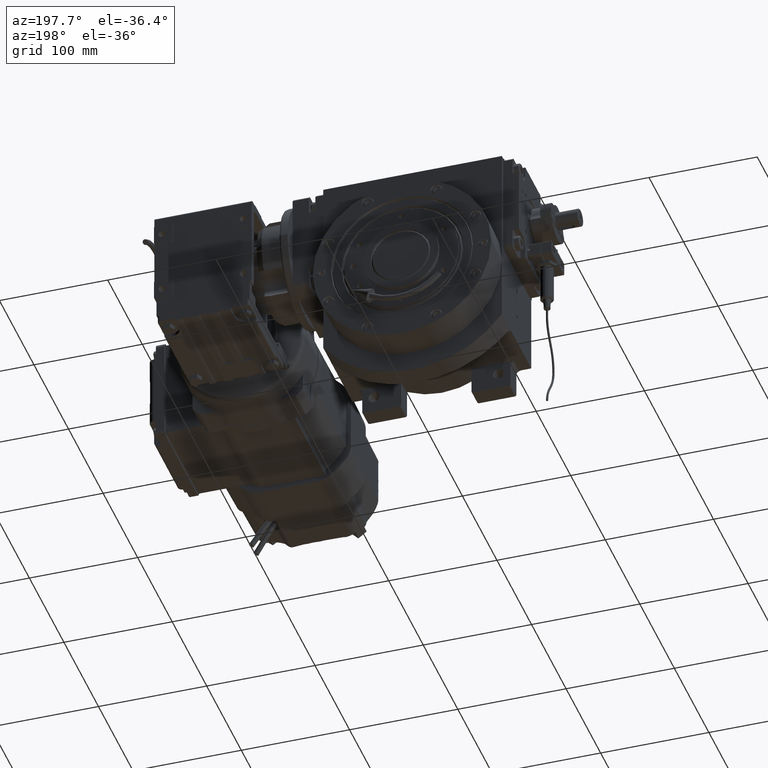
[diagram: clean part render]
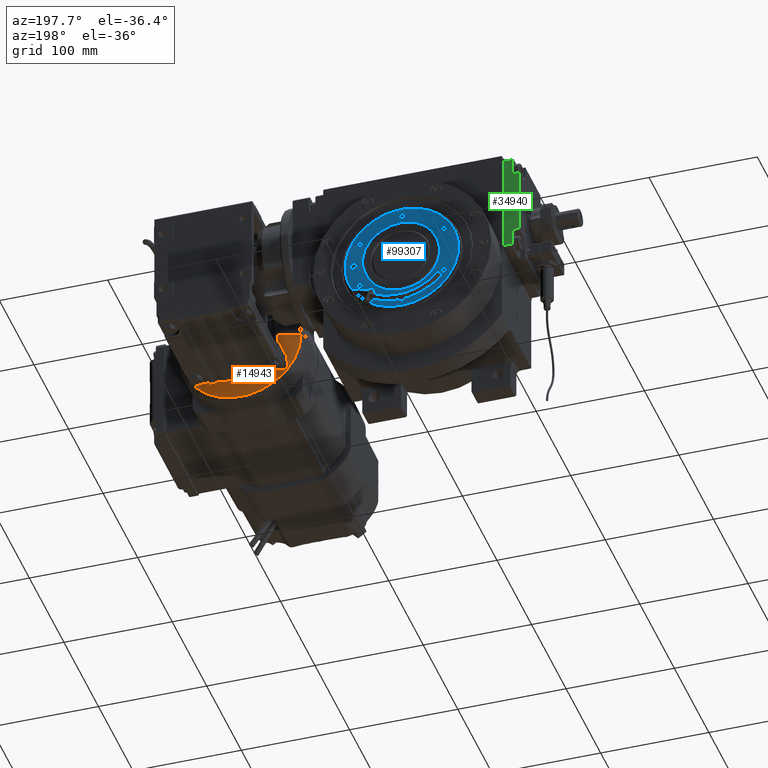
[diagram: same view with three faces highlighted in distinct colors, each labeled with its STEP entity id]
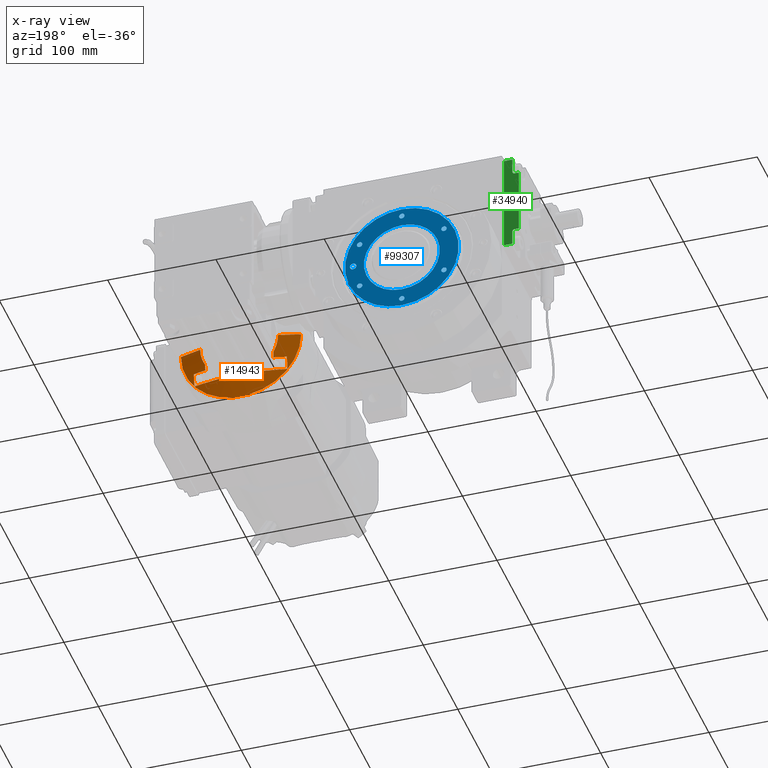
[diagram: x-ray of the same camera — body ghosted, the three highlighted faces saturated]
A machine part, auxiliary view with three faces highlighted in distinct colors.
The next image is the same camera in x-ray (body ghosted, the three faces saturated) — at least one of them is partly hidden behind the body in this view.
Their STEP definitions:

[orange] entity #14943 — the highlighted conical surface has half-angle 75 deg.
#424 = VERTEX_POINT ( 'NONE', #34430 ) ;
#835 = EDGE_CURVE ( 'NONE', #3101, #44496, #103355, .T. ) ;
#1517 = CARTESIAN_POINT ( 'NONE',  ( 60.70560464675960333, -55.53527618041010072, 23.00000000000000000 ) ) ;
#1633 = CARTESIAN_POINT ( 'NONE',  ( 55.59479854732852289, 10.25580491706939412, 57.99999784483905074 ) ) ;
#1983 = CARTESIAN_POINT ( 'NONE',  ( 59.37756693539540720, -43.00000000000005684, 49.84654288193761573 ) ) ;
#2159 = CARTESIAN_POINT ( 'NONE',  ( 55.21180228851321914, 1.518749620814553003, 57.99990757779804085 ) ) ;
#2208 = VERTEX_POINT ( 'NONE', #21032 ) ;
#2687 = CARTESIAN_POINT ( 'NONE',  ( 55.98866483824421181, 14.64589526414627407, 57.99931717376770735 ) ) ;
#3101 = VERTEX_POINT ( 'NONE', #86324 ) ;
#3135 = DIRECTION ( 'NONE',  ( 0.2588190451025170757, 0.9659258262890693114, -1.724081178505877120E-15 ) ) ;
#3213 = CARTESIAN_POINT ( 'NONE',  ( 55.52988276042200511, 9.359258455292662759, 57.99986076666460377 ) ) ;
#3298 = AXIS2_PLACEMENT_3D ( 'NONE', #43852, #92750, #91691 ) ;
#3478 = CARTESIAN_POINT ( 'NONE',  ( 57.35738505434664347, 36.37904139301277695, 45.99997976349786200 ) ) ;
#3678 = VECTOR ( 'NONE', #29288, 1000.000000000000114 ) ;
#3747 = CARTESIAN_POINT ( 'NONE',  ( 55.20447591439025103, 0.6213889841533943859, 58.00000055056467829 ) ) ;
#4014 = CARTESIAN_POINT ( 'NONE',  ( 56.67828474735084399, 33.34585159453098413, 46.00008137552858045 ) ) ;
#4126 = CARTESIAN_POINT ( 'NONE',  ( 57.74007323574029016, -38.05795624791647214, 45.99997492173984881 ) ) ;
#4266 = CARTESIAN_POINT ( 'NONE',  ( 58.55369725509652312, -32.11937751389896789, 58.00000068989255908 ) ) ;
#4531 = CARTESIAN_POINT ( 'NONE',  ( 56.47298224054166838, 32.41095305449594832, 46.00000000000004263 ) ) ;
#4785 = CARTESIAN_POINT ( 'NONE',  ( 55.55480695641094258, -9.678102850824329195, 57.99996520828103996 ) ) ;
#6275 = CIRCLE ( 'NONE', #65616, 55.53527618041010783 ) ;
#6345 = EDGE_CURVE ( 'NONE', #76436, #23620, #36203, .T. ) ;
#6645 = B_SPLINE_CURVE_WITH_KNOTS ( 'NONE', 3,
 ( #101234, #100711, #75720, #60326 ),
 .UNSPECIFIED., .F., .F.,
 ( 4, 4 ),
 ( 0.000000000000000000, 1.000000000000000000 ),
 .UNSPECIFIED. ) ;
#6767 = EDGE_CURVE ( 'NONE', #72037, #16247, #6275, .T. ) ;
#9636 = CARTESIAN_POINT ( 'NONE',  ( 56.93048809421203060, 22.19940043356490733, 58.00000579225199715 ) ) ;
#9778 = CARTESIAN_POINT ( 'NONE',  ( 60.68105753241992772, 42.99999999999998579, 58.00000000000083844 ) ) ;
#10154 = CARTESIAN_POINT ( 'NONE',  ( 55.22902768285334929, 2.640414489346750049, 57.99980308284672503 ) ) ;
#10685 = CARTESIAN_POINT ( 'NONE',  ( 58.64437501260088226, 32.61782815325872065, 58.00000229697241849 ) ) ;
#11210 = CARTESIAN_POINT ( 'NONE',  ( 55.38376555833004034, 6.904551271289927961, 58.00003099413505936 ) ) ;
#11587 = CARTESIAN_POINT ( 'NONE',  ( 57.98129327312985026, -39.10642082772725558, 46.00002199801362934 ) ) ;
#11733 = CARTESIAN_POINT ( 'NONE',  ( 60.29296078766867595, 41.13245522249020070, 58.00000000000000711 ) ) ;
#12001 = CARTESIAN_POINT ( 'NONE',  ( 57.45658739437995166, 36.81600595407524423, 45.99996258104147273 ) ) ;
#12114 = CARTESIAN_POINT ( 'NONE',  ( 56.27584952382022720, -31.50000000000000000, 46.00000000000027711 ) ) ;
#12257 = CARTESIAN_POINT ( 'NONE',  ( 58.42288389032510310, -31.39363734365098324, 58.00002967288055800 ) ) ;
#12300 = EDGE_CURVE ( 'NONE', #24991, #16247, #21349, .T. ) ;
#12523 = CARTESIAN_POINT ( 'NONE',  ( 57.55343899636205407, 37.24141494497584404, 45.99995606147111715 ) ) ;
#12635 = CARTESIAN_POINT ( 'NONE',  ( 58.89144530955721990, -42.99999999999998579, 46.00000000000027711 ) ) ;
#12779 = CARTESIAN_POINT ( 'NONE',  ( 55.91953545001264558, -14.03858445855587611, 57.99896360002735918 ) ) ;
#12929 = CARTESIAN_POINT ( 'NONE',  ( 59.37756693539530062, 42.99999999999958078, 49.84654288193758731 ) ) ;
#13362 = CARTESIAN_POINT ( 'NONE',  ( 60.70560464675960333, -55.53527618041010072, 23.00000000000000000 ) ) ;
#13680 = CARTESIAN_POINT ( 'NONE',  ( 58.09066315244004386, -39.57920898115285269, 46.00003962654415801 ) ) ;
#14465 = ORIENTED_EDGE ( 'NONE', *, *, #35430, .T. ) ;
#14943 = ADVANCED_FACE ( 'NONE', ( #17488 ), #102261, .T. ) ;
#16247 = VERTEX_POINT ( 'NONE', #1517 ) ;
#17488 = FACE_OUTER_BOUND ( 'NONE', #55420, .T. ) ;
#17620 = CARTESIAN_POINT ( 'NONE',  ( 57.38667572775629822, 25.24489131606639347, 58.00027114944251849 ) ) ;
#17784 = CARTESIAN_POINT ( 'NONE',  ( 55.70629206098000452, 31.49999999999940314, 42.24116222494700423 ) ) ;
#18141 = CARTESIAN_POINT ( 'NONE',  ( 57.12445891805860754, 23.52552018468882977, 58.00009546070077704 ) ) ;
#18400 = CARTESIAN_POINT ( 'NONE',  ( 58.89144530955721990, -42.99999999999998579, 46.00000000000027711 ) ) ;
#19189 = CARTESIAN_POINT ( 'NONE',  ( 55.73182955616174894, 11.91945088786192741, 57.99994078120256091 ) ) ;
#19723 = CARTESIAN_POINT ( 'NONE',  ( 59.24190080513361067, 35.81354223526840030, 58.00037415571010513 ) ) ;
#20769 = CARTESIAN_POINT ( 'NONE',  ( 57.91463368884339502, -28.48200423023081385, 58.00032636197047253 ) ) ;
#20820 = ORIENTED_EDGE ( 'NONE', *, *, #6345, .T. ) ;
#20904 = AXIS2_PLACEMENT_3D ( 'NONE', #49854, #63712, #31317 ) ;
#21032 = CARTESIAN_POINT ( 'NONE',  ( 56.27584952382022720, -31.50000000000000000, 46.00000000000027711 ) ) ;
#21283 = CARTESIAN_POINT ( 'NONE',  ( 55.20572867746128054, 0.8449296871884365290, 57.99998263170753887 ) ) ;
#21349 = LINE ( 'NONE', #13362, #3678 ) ;
#21801 = CARTESIAN_POINT ( 'NONE',  ( 56.21989587330659788, -16.75561040452729600, 57.99906160567301328 ) ) ;
#22200 = VERTEX_POINT ( 'NONE', #9778 ) ;
#23620 = VERTEX_POINT ( 'NONE', #102594 ) ;
#24140 = CARTESIAN_POINT ( 'NONE',  ( 55.67295191428865309, 11.21595701880527507, 58.00000013469762905 ) ) ;
#24834 = ORIENTED_EDGE ( 'NONE', *, *, #87441, .T. ) ;
#24991 = VERTEX_POINT ( 'NONE', #96738 ) ;
#26087 = CARTESIAN_POINT ( 'NONE',  ( 55.29112144808813412, 4.885380752023768203, 58.00012066464812932 ) ) ;
#27136 = CARTESIAN_POINT ( 'NONE',  ( 58.88010481217450831, 33.89730466681972842, 58.00010624261025782 ) ) ;
#27408 = CARTESIAN_POINT ( 'NONE',  ( 57.54950367862325322, 37.22415203964281716, 45.99995608569102501 ) ) ;
#27671 = CARTESIAN_POINT ( 'NONE',  ( 56.61605878314411200, 19.98400768915852765, 57.99999593877495130 ) ) ;
#28180 = CARTESIAN_POINT ( 'NONE',  ( 56.81182815739391145, -21.36088806064554291, 58.00000000221390195 ) ) ;
#28479 = ORIENTED_EDGE ( 'NONE', *, *, #6767, .F. ) ;
#28695 = CARTESIAN_POINT ( 'NONE',  ( 55.28226502629055972, -4.575413440328083503, 58.00014992311091078 ) ) ;
#29227 = CARTESIAN_POINT ( 'NONE',  ( 59.88831231623908025, -39.18526254498164718, 57.99999999999993605 ) ) ;
#29288 = DIRECTION ( 'NONE',  ( 0.2588190451025170757, -0.9659258262890693114, -1.605789381368008583E-15 ) ) ;
#29658 = ORIENTED_EDGE ( 'NONE', *, *, #34014, .T. ) ;
#29753 = CARTESIAN_POINT ( 'NONE',  ( 55.24190846571092806, -3.216132428180518144, 57.99990780651111777 ) ) ;
#31317 = DIRECTION ( 'NONE',  ( 0.000000000000000000, 1.000000000000000000, 0.000000000000000000 ) ) ;
#32078 = CARTESIAN_POINT ( 'NONE',  ( 60.68105753241992772, 42.99999999999998579, 58.00000000000083844 ) ) ;
#33297 = ORIENTED_EDGE ( 'NONE', *, *, #82261, .T. ) ;
#33886 = ORIENTED_EDGE ( 'NONE', *, *, #36126, .T. ) ;
#34014 = EDGE_CURVE ( 'NONE', #23620, #22200, #102077, .T. ) ;
#34041 = CARTESIAN_POINT ( 'NONE',  ( 55.81909124310548975, 12.89842630269497903, 57.99973291084609883 ) ) ;
#34430 = CARTESIAN_POINT ( 'NONE',  ( 60.68105753241992772, -42.99999999999998579, 58.00000000000083844 ) ) ;
#34579 = CARTESIAN_POINT ( 'NONE',  ( 55.20939382126598360, 1.294256962774257946, 57.99993614853741519 ) ) ;
#34639 = DIRECTION ( 'NONE',  ( 1.000000000000000000, 2.142138711528200832E-47, -6.661338147750980263E-15 ) ) ;
#35102 = CARTESIAN_POINT ( 'NONE',  ( 55.36671241091783457, 6.570347031544362615, 58.00007352765489799 ) ) ;
#35252 = CARTESIAN_POINT ( 'NONE',  ( 58.89144530955711332, 42.99999999999940314, 46.00000000000027711 ) ) ;
#35430 = EDGE_CURVE ( 'NONE', #48382, #2208, #47280, .T. ) ;
#35629 = CARTESIAN_POINT ( 'NONE',  ( 59.92643170991120627, 39.31978427658594910, 58.00047335426332040 ) ) ;
#35639 = CARTESIAN_POINT ( 'NONE',  ( 60.70560464675960333, 0.000000000000000000, 23.00000000000000000 ) ) ;
#36126 = EDGE_CURVE ( 'NONE', #22200, #424, #42193, .T. ) ;
#36145 = CARTESIAN_POINT ( 'NONE',  ( 56.70224380031915246, -20.56674021243053829, 57.99994885884542128 ) ) ;
#36203 = B_SPLINE_CURVE_WITH_KNOTS ( 'NONE', 3,
 ( #84786, #4531, #4014, #44399, #60867, #93287, #3478, #12001, #52876, #85313, #68302, #27408, #12523, #69337, #92247, #44926 ),
 .UNSPECIFIED., .F., .F.,
 ( 4, 2, 2, 1, 1, 1, 1, 2, 2, 4 ),
 ( 0.000000000000000000, 0.2500000000000114353, 0.3750000000000171529, 0.4375000000000202616, 0.4687500000000209277, 0.4843750000000204836, 0.4921875000000196509, 0.4960937500000192069, 0.5000000000000187628, 1.000000000000000000 ),
 .UNSPECIFIED. ) ;
#36653 = CARTESIAN_POINT ( 'NONE',  ( 56.65500433359252952, -20.21588629307815665, 57.99988959529130739 ) ) ;
#37034 = CARTESIAN_POINT ( 'NONE',  ( 57.56976527915672648, -37.31300970907284409, 45.99995636308280922 ) ) ;
#37174 = CARTESIAN_POINT ( 'NONE',  ( 58.57017062647901184, -32.21022454179474437, 58.00000002524666343 ) ) ;
#37715 = CARTESIAN_POINT ( 'NONE',  ( 56.50201378934142582, -19.05246140927851428, 57.99962716294535880 ) ) ;
#37723 = DIRECTION ( 'NONE',  ( 0.000000000000000000, 1.000000000000000000, 0.000000000000000000 ) ) ;
#42025 = CARTESIAN_POINT ( 'NONE',  ( 56.88540011726417589, 21.88332461339216195, 58.00000023079093125 ) ) ;
#42193 = B_SPLINE_CURVE_WITH_KNOTS ( 'NONE', 3,
 ( #32078, #11733, #35629, #59017, #19723, #49989, #27136, #60071, #50507, #10685, #76006, #83464, #66442, #99405, #74944, #56516, #64482, #17620, #91987, #18141, #90922, #82938, #9636, #43086, #67504, #42025, #100463, #66973, #27671, #52086, #75479, #2687, #74423, #34041, #92510, #19189, #51560, #83999, #96924, #24140, #1633, #3213, #98877, #91447, #11210, #35102, #44130, #84526, #76537, #26087, #58486, #10154, #42554, #2159, #34579, #21283, #3747, #87154, #46232, #95112, #29753, #46755, #28695, #68562, #61635, #78109, #53133, #69072, #4785, #77061, #53649, #85049, #52607, #54703, #12779, #21801, #85580, #37715, #61114, #36653, #36145, #86097, #101499, #69598, #45177, #28180, #100985, #93026, #62151, #93545, #20769, #70645, #60598, #12257, #103070, #94076, #4266, #77585, #45703, #37174, #102025, #29227, #86618 ),
 .UNSPECIFIED., .F., .F.,
 ( 4, 2, 2, 1, 1, 1, 1, 1, 2, 2, 2, 2, 2, 1, 1, 1, 1, 2, 2, 2, 2, 2, 1, 1, 2, 2, 2, 2, 1, 2, 2, 2, 2, 2, 2, 2, 2, 2, 2, 2, 1, 1, 2, 2, 2, 2, 2, 1, 1, 1, 1, 2, 2, 2, 2, 1, 1, 1, 1, 1, 2, 2, 4 ),
 ( 0.000000000000000000, 0.06249999999999142353, 0.09374999999998713529, 0.1093749999999851091, 0.1171874999999842487, 0.1210937499999836936, 0.1230468749999832495, 0.1240234374999830691, 0.1245117187499829997, 0.1249999999999829303, 0.1874999999999868716, 0.2187499999999888978, 0.2343749999999899802, 0.2421874999999904521, 0.2460937499999905909, 0.2480468749999906741, 0.2490234374999907019, 0.2495117187499907019, 0.2499999999999907296, 0.3124999999999923950, 0.3437499999999932276, 0.3593749999999936162, 0.3671874999999937828, 0.3710937499999938938, 0.3730468749999939493, 0.3749999999999940048, 0.4062499999999961697, 0.4218749999999972244, 0.4296874999999977796, 0.4335937499999980016, 0.4374999999999982236, 0.4687500000000002776, 0.4843750000000013323, 0.4921875000000018319, 0.5000000000000023315, 0.5312500000000043299, 0.5468750000000054401, 0.5625000000000065503, 0.5937500000000085487, 0.6093750000000095479, 0.6171875000000099920, 0.6210937500000102141, 0.6230468750000104361, 0.6250000000000105471, 0.6875000000000166533, 0.7187500000000197620, 0.7343750000000212053, 0.7421875000000219824, 0.7460937500000223155, 0.7480468750000224265, 0.7490234375000224265, 0.7495117187500225375, 0.7500000000000225375, 0.8125000000000243139, 0.8437500000000250910, 0.8593750000000255351, 0.8671875000000256462, 0.8710937500000256462, 0.8730468750000256462, 0.8740234375000257572, 0.8745117187500257572, 0.8750000000000257572, 1.000000000000000000 ),
 .UNSPECIFIED. ) ;
#42554 = CARTESIAN_POINT ( 'NONE',  ( 55.22075537628956710, 2.191961283186670162, 57.99983336573616555 ) ) ;
#43086 = CARTESIAN_POINT ( 'NONE',  ( 56.90412509585396350, 22.01493292371597477, 58.00000167696753550 ) ) ;
#43852 = CARTESIAN_POINT ( 'NONE',  ( 55.47114317029980413, 0.000000000000000000, 23.00000000000000000 ) ) ;
#44130 = CARTESIAN_POINT ( 'NONE',  ( 55.35087430895187310, 6.236118400904671510, 58.00010250150588575 ) ) ;
#44399 = CARTESIAN_POINT ( 'NONE',  ( 56.99849319269672066, 34.78463255653902308, 46.00006528355468305 ) ) ;
#44496 = VERTEX_POINT ( 'NONE', #46475 ) ;
#44926 = CARTESIAN_POINT ( 'NONE',  ( 58.89144530955711332, 42.99999999999940314, 46.00000000000027711 ) ) ;
#45177 = CARTESIAN_POINT ( 'NONE',  ( 56.80771287209157094, -21.33139205439407604, 57.99999981338048372 ) ) ;
#45331 = CARTESIAN_POINT ( 'NONE',  ( 60.68105753241992772, 42.99999999999998579, 58.00000000000083844 ) ) ;
#45703 = CARTESIAN_POINT ( 'NONE',  ( 58.56716927548404783, -32.19368145118657765, 58.00000009251114363 ) ) ;
#46232 = CARTESIAN_POINT ( 'NONE',  ( 55.20766077851898501, -1.411652082277337961, 57.99978155462283524 ) ) ;
#46475 = CARTESIAN_POINT ( 'NONE',  ( 55.47114317029952701, 31.49999999999949907, 40.42842505793439756 ) ) ;
#46755 = CARTESIAN_POINT ( 'NONE',  ( 55.26721103617414599, -4.120559954296784788, 58.00006254286046925 ) ) ;
#47280 = B_SPLINE_CURVE_WITH_KNOTS ( 'NONE', 3,
 ( #12635, #84380, #68415, #13680, #11587, #53507, #4126, #67884, #76388, #77441, #37034, #69457, #60456, #92887, #101878, #12114 ),
 .UNSPECIFIED., .F., .F.,
 ( 4, 2, 2, 1, 1, 1, 1, 2, 2, 4 ),
 ( 0.000000000000000000, 0.2500000000000044409, 0.3750000000000075495, 0.4375000000000091038, 0.4687500000000105471, 0.4843750000000114908, 0.4921875000000126565, 0.4960937500000132117, 0.5000000000000137668, 1.000000000000000000 ),
 .UNSPECIFIED. ) ;
#48382 = VERTEX_POINT ( 'NONE', #18400 ) ;
#49854 = CARTESIAN_POINT ( 'NONE',  ( 60.70560464675960333, 0.000000000000000000, 23.00000000000000000 ) ) ;
#49989 = CARTESIAN_POINT ( 'NONE',  ( 58.99935549730703599, 34.53284033154156418, 58.00020025703602045 ) ) ;
#50507 = CARTESIAN_POINT ( 'NONE',  ( 58.67760839258348682, 32.79958781127891143, 58.00000830923919892 ) ) ;
#50669 = CARTESIAN_POINT ( 'NONE',  ( 56.27584952382012062, 31.49999999999938893, 46.00000000000027711 ) ) ;
#51560 = CARTESIAN_POINT ( 'NONE',  ( 55.69968004720364974, 11.53935750399609717, 57.99998461286109830 ) ) ;
#52086 = CARTESIAN_POINT ( 'NONE',  ( 56.38432305684725776, 18.18290997043838431, 57.99927362365131955 ) ) ;
#52607 = CARTESIAN_POINT ( 'NONE',  ( 55.61023866437720642, -10.42345064244096164, 58.00000013552298128 ) ) ;
#52765 = CARTESIAN_POINT ( 'NONE',  ( 59.97410434301627902, 42.99999999999978684, 53.82052152490446417 ) ) ;
#52876 = CARTESIAN_POINT ( 'NONE',  ( 57.50652365344318184, 37.03549082303441509, 45.99995773013117173 ) ) ;
#53133 = CARTESIAN_POINT ( 'NONE',  ( 55.48479130631958611, -8.652882439653419411, 57.99988345102437393 ) ) ;
#53507 = CARTESIAN_POINT ( 'NONE',  ( 57.82001684905507233, -38.40598654206692686, 45.99999110328717222 ) ) ;
#53649 = CARTESIAN_POINT ( 'NONE',  ( 55.59706397879509865, -10.24987706115562780, 57.99999670050324596 ) ) ;
#54703 = CARTESIAN_POINT ( 'NONE',  ( 55.75111273110650245, -12.25649103424704300, 57.99999566326732747 ) ) ;
#55420 = EDGE_LOOP ( 'NONE', ( #24834, #99138, #28479, #65350, #60026, #78880, #20820, #29658, #33886, #33297, #14465, #84462 ) ) ;
#56516 = CARTESIAN_POINT ( 'NONE',  ( 57.95818419571281765, 28.76395723317902409, 58.00037612622549688 ) ) ;
#56644 = EDGE_CURVE ( 'NONE', #2208, #63785, #6645, .T. ) ;
#57523 = B_SPLINE_CURVE_WITH_KNOTS ( 'NONE', 3,
 ( #58306, #81195, #1983, #97150 ),
 .UNSPECIFIED., .F., .F.,
 ( 4, 4 ),
 ( 0.000000000000000000, 1.000000000000000000 ),
 .UNSPECIFIED. ) ;
#58306 = CARTESIAN_POINT ( 'NONE',  ( 60.68105753241992772, -42.99999999999998579, 58.00000000000083844 ) ) ;
#58486 = CARTESIAN_POINT ( 'NONE',  ( 55.26075534668333944, 3.986669286035213755, 57.99984905294627424 ) ) ;
#59017 = CARTESIAN_POINT ( 'NONE',  ( 59.40898959376657729, 36.68019017497456957, 58.00046426720437864 ) ) ;
#59795 = EDGE_CURVE ( 'NONE', #3101, #72037, #68485, .T. ) ;
#60026 = ORIENTED_EDGE ( 'NONE', *, *, #835, .T. ) ;
#60071 = CARTESIAN_POINT ( 'NONE',  ( 58.74451745821944115, 33.16412686294330570, 58.00003029733829862 ) ) ;
#60326 = CARTESIAN_POINT ( 'NONE',  ( 55.47114317029952701, -31.50000000000000000, 40.42842505793339569 ) ) ;
#60456 = CARTESIAN_POINT ( 'NONE',  ( 57.56037064755739863, -37.27181676823019529, 45.99995614448337733 ) ) ;
#60598 = CARTESIAN_POINT ( 'NONE',  ( 58.27608220077440393, -30.56961177493907655, 58.00010130565387811 ) ) ;
#60867 = CARTESIAN_POINT ( 'NONE',  ( 57.10727178866738996, 35.27029555562554464, 46.00004248188379563 ) ) ;
#61114 = CARTESIAN_POINT ( 'NONE',  ( 56.56201684841850152, -19.51620735255664485, 57.99974930208453827 ) ) ;
#61635 = CARTESIAN_POINT ( 'NONE',  ( 55.37754933289858172, -6.838331186824240682, 57.99991388610038712 ) ) ;
#62151 = CARTESIAN_POINT ( 'NONE',  ( 57.32251402031835852, -24.86462717143589529, 58.00034514497767191 ) ) ;
#63712 = DIRECTION ( 'NONE',  ( 1.000000000000000000, 2.142138711528200832E-47, -6.661338147750980263E-15 ) ) ;
#63785 = VERTEX_POINT ( 'NONE', #87671 ) ;
#64482 = CARTESIAN_POINT ( 'NONE',  ( 57.52484535988931214, 26.11617270288741111, 58.00034679253560199 ) ) ;
#65350 = ORIENTED_EDGE ( 'NONE', *, *, #59795, .F. ) ;
#65368 = CARTESIAN_POINT ( 'NONE',  ( 60.70560464675960333, 55.53527618041010072, 23.00000000000000000 ) ) ;
#65616 = AXIS2_PLACEMENT_3D ( 'NONE', #35639, #84533, #37723 ) ;
#65889 = B_SPLINE_CURVE_WITH_KNOTS ( 'NONE', 3,
 ( #90563, #17784, #66607, #50669 ),
 .UNSPECIFIED., .F., .F.,
 ( 4, 4 ),
 ( 0.000000000000000000, 1.000000000000000000 ),
 .UNSPECIFIED. ) ;
#66442 = CARTESIAN_POINT ( 'NONE',  ( 58.61600641667742906, 32.46230349537231774, 58.00000008424401443 ) ) ;
#66607 = CARTESIAN_POINT ( 'NONE',  ( 55.97452751215352151, 31.49999999999940314, 44.09299924356385247 ) ) ;
#66973 = CARTESIAN_POINT ( 'NONE',  ( 56.87997962252764950, 21.84514293452139100, 58.00000003172833374 ) ) ;
#67504 = CARTESIAN_POINT ( 'NONE',  ( 56.89100795681942913, 21.92279308262036963, 58.00000052376573478 ) ) ;
#67884 = CARTESIAN_POINT ( 'NONE',  ( 57.64802123463761774, -37.65574007516822519, 45.99996179651366646 ) ) ;
#68302 = CARTESIAN_POINT ( 'NONE',  ( 57.54233003577534333, 37.19267765388404712, 45.99995619969118366 ) ) ;
#68415 = CARTESIAN_POINT ( 'NONE',  ( 58.42432958015164246, -41.01512677716419830, 46.00005547339768697 ) ) ;
#68485 = LINE ( 'NONE', #83923, #87032 ) ;
#68562 = CARTESIAN_POINT ( 'NONE',  ( 55.33404177927545220, -5.934275484254893485, 58.00014372064735113 ) ) ;
#69072 = CARTESIAN_POINT ( 'NONE',  ( 55.53090654898672085, -9.336045442440525477, 57.99993493713166259 ) ) ;
#69133 = CARTESIAN_POINT ( 'NONE',  ( 55.47114317029980413, 0.000000000000000000, 23.00000000000000000 ) ) ;
#69337 = CARTESIAN_POINT ( 'NONE',  ( 57.97195483699029950, 39.07700684059792451, 45.99995704278049402 ) ) ;
#69457 = CARTESIAN_POINT ( 'NONE',  ( 57.56326972565777567, -37.28452967690482467, 45.99995620001207186 ) ) ;
#69598 = CARTESIAN_POINT ( 'NONE',  ( 56.80154577010791428, -21.28715669349525186, 57.99999934024700821 ) ) ;
#70645 = CARTESIAN_POINT ( 'NONE',  ( 58.15395407660113847, -29.87059536005410010, 58.00018372483908990 ) ) ;
#72037 = VERTEX_POINT ( 'NONE', #65368 ) ;
#74423 = CARTESIAN_POINT ( 'NONE',  ( 55.86007186618203946, 13.33443971692285146, 57.99961720223483042 ) ) ;
#74944 = CARTESIAN_POINT ( 'NONE',  ( 58.27218333882772328, 30.57456865964438819, 57.99999652249945825 ) ) ;
#75479 = CARTESIAN_POINT ( 'NONE',  ( 56.08192829006242164, 15.52477423246777199, 57.99919456062839629 ) ) ;
#75720 = CARTESIAN_POINT ( 'NONE',  ( 55.70629206098005426, -31.49999999999997158, 42.24116222494650685 ) ) ;
#76006 = CARTESIAN_POINT ( 'NONE',  ( 58.62781361081845688, 32.52707545989041193, 58.00000066522903808 ) ) ;
#76388 = CARTESIAN_POINT ( 'NONE',  ( 57.60229912102744976, -37.45558568315922088, 45.99995784368941543 ) ) ;
#76436 = VERTEX_POINT ( 'NONE', #93725 ) ;
#76537 = CARTESIAN_POINT ( 'NONE',  ( 55.33564942837644196, 5.903517796548582552, 58.00012042611658103 ) ) ;
#77061 = CARTESIAN_POINT ( 'NONE',  ( 55.58416564073103672, -10.07818020217999866, 57.99999055730422981 ) ) ;
#77441 = CARTESIAN_POINT ( 'NONE',  ( 57.57951403595765782, -37.35574676974120223, 45.99995667407976185 ) ) ;
#77585 = CARTESIAN_POINT ( 'NONE',  ( 58.56177853925849774, -32.16395598623709162, 58.00000028989636291 ) ) ;
#78109 = CARTESIAN_POINT ( 'NONE',  ( 55.45629524078311334, -8.198710929914573953, 57.99986409736097670 ) ) ;
#78880 = ORIENTED_EDGE ( 'NONE', *, *, #85584, .T. ) ;
#81195 = CARTESIAN_POINT ( 'NONE',  ( 59.97410434301634297, -43.00000000000004974, 53.82052152490449259 ) ) ;
#82261 = EDGE_CURVE ( 'NONE', #424, #48382, #57523, .T. ) ;
#82938 = CARTESIAN_POINT ( 'NONE',  ( 56.98372897208431453, 22.56909344985369614, 58.00002070392460496 ) ) ;
#83464 = CARTESIAN_POINT ( 'NONE',  ( 58.62072771467071419, 32.48820865592147555, 58.00000027453666718 ) ) ;
#83533 = DIRECTION ( 'NONE',  ( 0.000000000000000000, 1.000000000000000000, 0.000000000000000000 ) ) ;
#83923 = CARTESIAN_POINT ( 'NONE',  ( 60.70560464675960333, 55.53527618041010072, 23.00000000000000000 ) ) ;
#83966 = AXIS2_PLACEMENT_3D ( 'NONE', #69133, #34639, #83533 ) ;
#83999 = CARTESIAN_POINT ( 'NONE',  ( 55.68616658166690314, 11.37653083871289006, 57.99999458492535354 ) ) ;
#84380 = CARTESIAN_POINT ( 'NONE',  ( 58.65418291833400843, -41.99581455985754985, 45.99999999999995737 ) ) ;
#84462 = ORIENTED_EDGE ( 'NONE', *, *, #56644, .T. ) ;
#84526 = CARTESIAN_POINT ( 'NONE',  ( 55.34058558440710129, 6.013276444653953945, 58.00011627756127552 ) ) ;
#84533 = DIRECTION ( 'NONE',  ( 1.000000000000000000, 2.142138711528200832E-47, -6.661338147750980263E-15 ) ) ;
#84786 = CARTESIAN_POINT ( 'NONE',  ( 56.27584952382012062, 31.49999999999938893, 46.00000000000027711 ) ) ;
#85049 = CARTESIAN_POINT ( 'NONE',  ( 55.60573310301198546, -10.36439594479314152, 57.99999944319889522 ) ) ;
#85313 = CARTESIAN_POINT ( 'NONE',  ( 57.53157555523643651, 37.14548398889729697, 45.99995646660622128 ) ) ;
#85580 = CARTESIAN_POINT ( 'NONE',  ( 56.32797040522705601, -17.66850843438998453, 57.99927177793274780 ) ) ;
#85584 = EDGE_CURVE ( 'NONE', #44496, #76436, #65889, .T. ) ;
#86097 = CARTESIAN_POINT ( 'NONE',  ( 56.75866152874451842, -20.97793058686477252, 57.99998708987865115 ) ) ;
#86324 = CARTESIAN_POINT ( 'NONE',  ( 55.47114317029980413, 36.00000000000000711, 23.00000000000000000 ) ) ;
#86618 = CARTESIAN_POINT ( 'NONE',  ( 60.68105753241992772, -42.99999999999998579, 58.00000000000083844 ) ) ;
#87032 = VECTOR ( 'NONE', #3135, 1000.000000000000114 ) ;
#87154 = CARTESIAN_POINT ( 'NONE',  ( 55.20105244089527474, -0.5105208361465959355, 57.99999779774156394 ) ) ;
#87441 = EDGE_CURVE ( 'NONE', #63785, #24991, #94138, .T. ) ;
#87671 = CARTESIAN_POINT ( 'NONE',  ( 55.47114317029952701, -31.50000000000000000, 40.42842505793339569 ) ) ;
#90563 = CARTESIAN_POINT ( 'NONE',  ( 55.47114317029952701, 31.49999999999949907, 40.42842505793439756 ) ) ;
#90922 = CARTESIAN_POINT ( 'NONE',  ( 57.03024666367105766, 22.88729532331987926, 58.00004302932098454 ) ) ;
#91447 = CARTESIAN_POINT ( 'NONE',  ( 55.41949191374954609, 7.573133554130659029, 57.99994978433431925 ) ) ;
#91691 = DIRECTION ( 'NONE',  ( 0.000000000000000000, 1.000000000000000000, 0.000000000000000000 ) ) ;
#91987 = CARTESIAN_POINT ( 'NONE',  ( 57.18883624926898790, 23.95343241455239180, 58.00014063929079100 ) ) ;
#92247 = CARTESIAN_POINT ( 'NONE',  ( 58.41687550510810212, 40.99143856933367402, 46.00000000000003553 ) ) ;
#92510 = CARTESIAN_POINT ( 'NONE',  ( 55.76044585990695168, 12.24558061123385500, 57.99987675819907196 ) ) ;
#92750 = DIRECTION ( 'NONE',  ( 1.000000000000000000, 2.142138711528200832E-47, -6.661338147750980263E-15 ) ) ;
#92887 = CARTESIAN_POINT ( 'NONE',  ( 57.09712534641997905, -35.24005232659727227, 45.99995096462534150 ) ) ;
#93026 = CARTESIAN_POINT ( 'NONE',  ( 57.05606934958872500, -23.10886576470630871, 57.99999611707906411 ) ) ;
#93287 = CARTESIAN_POINT ( 'NONE',  ( 57.27350335390638492, 36.00793537371519903, 46.00000144104259192 ) ) ;
#93545 = CARTESIAN_POINT ( 'NONE',  ( 57.76166791112331111, -27.56887855762279926, 58.00038478682690624 ) ) ;
#93725 = CARTESIAN_POINT ( 'NONE',  ( 56.27584952382012062, 31.49999999999938893, 46.00000000000027711 ) ) ;
#94076 = CARTESIAN_POINT ( 'NONE',  ( 58.53487466661978544, -32.01542910447300017, 58.00000233068368516 ) ) ;
#94138 = CIRCLE ( 'NONE', #83966, 36.00000000000000000 ) ;
#95112 = CARTESIAN_POINT ( 'NONE',  ( 55.23159395958424511, -2.764827910641975084, 57.99984057380192581 ) ) ;
#96738 = CARTESIAN_POINT ( 'NONE',  ( 55.47114317029980413, -36.00000000000000711, 23.00000000000000000 ) ) ;
#96924 = CARTESIAN_POINT ( 'NONE',  ( 55.67721647029689080, 11.26799390368508469, 57.99999901866834051 ) ) ;
#97150 = CARTESIAN_POINT ( 'NONE',  ( 58.89144530955721990, -42.99999999999998579, 46.00000000000027711 ) ) ;
#98877 = CARTESIAN_POINT ( 'NONE',  ( 55.44546956482260924, 8.019088073303638708, 57.99990352941168226 ) ) ;
#99138 = ORIENTED_EDGE ( 'NONE', *, *, #12300, .T. ) ;
#99405 = CARTESIAN_POINT ( 'NONE',  ( 58.61393833134982145, 32.45095301108813146, 58.00000002716801362 ) ) ;
#100463 = CARTESIAN_POINT ( 'NONE',  ( 56.88166462232947396, 21.85701674251874493, 58.00000008102534821 ) ) ;
#100711 = CARTESIAN_POINT ( 'NONE',  ( 55.97452751215362809, -31.49999999999997158, 44.09299924356368905 ) ) ;
#100985 = CARTESIAN_POINT ( 'NONE',  ( 56.81407333053389408, -21.37696715218443089, 58.00000003033535023 ) ) ;
#101234 = CARTESIAN_POINT ( 'NONE',  ( 56.27584952382022720, -31.50000000000000000, 46.00000000000027711 ) ) ;
#101499 = CARTESIAN_POINT ( 'NONE',  ( 56.78719664726828142, -21.18400123409677960, 57.99999693151106328 ) ) ;
#101878 = CARTESIAN_POINT ( 'NONE',  ( 56.67014865478974883, -33.32206182573827391, 46.00000000000001421 ) ) ;
#102025 = CARTESIAN_POINT ( 'NONE',  ( 59.18548141606090951, -35.60059470003214699, 57.99999353684138725 ) ) ;
#102077 = B_SPLINE_CURVE_WITH_KNOTS ( 'NONE', 3,
 ( #35252, #12929, #52765, #45331 ),
 .UNSPECIFIED., .F., .F.,
 ( 4, 4 ),
 ( 0.000000000000000000, 1.000000000000000000 ),
 .UNSPECIFIED. ) ;
#102261 = CONICAL_SURFACE ( 'NONE', #20904, 55.53527618041010783, 1.308996938995750092 ) ;
#102594 = CARTESIAN_POINT ( 'NONE',  ( 58.89144530955711332, 42.99999999999940314, 46.00000000000027711 ) ) ;
#103070 = CARTESIAN_POINT ( 'NONE',  ( 58.49736445460425216, -31.80780399038562223, 58.00000828522879459 ) ) ;
#103355 = CIRCLE ( 'NONE', #3298, 36.00000000000000000 ) ;

[blue] entity #99307 — the highlighted planar face has unit normal (-0, -1, -0).
#271 = CIRCLE ( 'NONE', #85183, 2.499999999999998668 ) ;
#518 = VERTEX_POINT ( 'NONE', #28555 ) ;
#1150 = CARTESIAN_POINT ( 'NONE',  ( 1.776356839400212599E-14, 89.00000000000000000, 5.777789833161707559E-31 ) ) ;
#1296 = EDGE_CURVE ( 'NONE', #52027, #101508, #8410, .T. ) ;
#1376 = CARTESIAN_POINT ( 'NONE',  ( -52.49999999999930367, 89.00000000000000000, -4.286263797015301834E-15 ) ) ;
#1758 = DIRECTION ( 'NONE',  ( -4.315992008230258186E-15, 0.000000000000000000, -1.000000000000000000 ) ) ;
#2890 = CARTESIAN_POINT ( 'NONE',  ( -44.99999999999930367, 89.00000000000000000, 1.769159246914114855E-27 ) ) ;
#3327 = CIRCLE ( 'NONE', #49363, 52.50000000000000000 ) ;
#3443 = DIRECTION ( 'NONE',  ( 4.930380657631323784E-30, 1.000000000000000000, -1.097780068303089127E-32 ) ) ;
#3613 = EDGE_CURVE ( 'NONE', #23637, #21926, #78327, .T. ) ;
#4319 = CIRCLE ( 'NONE', #46802, 2.499999999999998668 ) ;
#4329 = ORIENTED_EDGE ( 'NONE', *, *, #26315, .F. ) ;
#4373 = ORIENTED_EDGE ( 'NONE', *, *, #23513, .F. ) ;
#5046 = AXIS2_PLACEMENT_3D ( 'NONE', #20905, #68700, #28832 ) ;
#5163 = DIRECTION ( 'NONE',  ( 4.930380657631323784E-30, 1.000000000000000000, -1.097780068303089127E-32 ) ) ;
#5529 = CARTESIAN_POINT ( 'NONE',  ( 22.50000000000000000, 89.00000000000000000, 38.97114317029975439 ) ) ;
#7231 = ORIENTED_EDGE ( 'NONE', *, *, #29213, .F. ) ;
#8410 = CIRCLE ( 'NONE', #32112, 3.000000000000002665 ) ;
#8947 = CARTESIAN_POINT ( 'NONE',  ( -34.99999999999931077, 89.00000000000000000, -5.715018396018082405E-15 ) ) ;
#9403 = FACE_BOUND ( 'NONE', #24159, .T. ) ;
#9761 = CARTESIAN_POINT ( 'NONE',  ( 1.365852868534666995E-11, 89.00000000000000000, -44.99999999999998579 ) ) ;
#9921 = FACE_OUTER_BOUND ( 'NONE', #65815, .T. ) ;
#10190 = DIRECTION ( 'NONE',  ( -2.706829469562383302E-16, -1.000000000000000000, 2.461142207494502881E-30 ) ) ;
#11049 = ORIENTED_EDGE ( 'NONE', *, *, #37429, .F. ) ;
#11272 = DIRECTION ( 'NONE',  ( 1.000000000000000000, 0.000000000000000000, 0.000000000000000000 ) ) ;
#11949 = CARTESIAN_POINT ( 'NONE',  ( 47.50000000000069633, 89.00000000000000000, 2.558020152135126660E-27 ) ) ;
#12564 = VERTEX_POINT ( 'NONE', #8947 ) ;
#12947 = EDGE_LOOP ( 'NONE', ( #19538, #4329 ) ) ;
#12967 = CIRCLE ( 'NONE', #48575, 35.00000000000000000 ) ;
#13146 = CARTESIAN_POINT ( 'NONE',  ( 22.49999999999965183, 89.00000000000000000, -38.97114317029975439 ) ) ;
#16653 = CARTESIAN_POINT ( 'NONE',  ( -22.50000000000000000, 89.00000000000000000, 38.97114317029975439 ) ) ;
#18200 = AXIS2_PLACEMENT_3D ( 'NONE', #68789, #3443, #84752 ) ;
#18291 = DIRECTION ( 'NONE',  ( -4.930380657631323784E-30, -1.000000000000000000, 1.097780068303089127E-32 ) ) ;
#19073 = CIRCLE ( 'NONE', #80199, 2.500000000000002220 ) ;
#19538 = ORIENTED_EDGE ( 'NONE', *, *, #91684, .F. ) ;
#20905 = CARTESIAN_POINT ( 'NONE',  ( 22.49999999999965183, 89.00000000000000000, -38.97114317029975439 ) ) ;
#21862 = CARTESIAN_POINT ( 'NONE',  ( -20.00000000000034817, 89.00000000000000000, -38.97114317030044361 ) ) ;
#21926 = VERTEX_POINT ( 'NONE', #1376 ) ;
#22829 = DIRECTION ( 'NONE',  ( 4.930380657631323784E-30, 1.000000000000000000, -1.097780068303089127E-32 ) ) ;
#23513 = EDGE_CURVE ( 'NONE', #23637, #21926, #3327, .T. ) ;
#23637 = VERTEX_POINT ( 'NONE', #94634 ) ;
#24159 = EDGE_LOOP ( 'NONE', ( #27697, #7231 ) ) ;
#24438 = DIRECTION ( 'NONE',  ( 1.000000000000000000, 0.000000000000000000, -1.776356839400250563E-16 ) ) ;
#24862 = CIRCLE ( 'NONE', #82559, 2.499999999999998668 ) ;
#26072 = CARTESIAN_POINT ( 'NONE',  ( -20.00000000000000000, 89.00000000000000000, 38.97114317029905806 ) ) ;
#26315 = EDGE_CURVE ( 'NONE', #40062, #27279, #271, .T. ) ;
#27279 = VERTEX_POINT ( 'NONE', #51882 ) ;
#27697 = ORIENTED_EDGE ( 'NONE', *, *, #43488, .F. ) ;
#27951 = DIRECTION ( 'NONE',  ( 4.930380657631323784E-30, 1.000000000000000000, -1.097780068303089127E-32 ) ) ;
#28227 = EDGE_LOOP ( 'NONE', ( #42489, #61574 ) ) ;
#28386 = CARTESIAN_POINT ( 'NONE',  ( 24.99999999999965539, 89.00000000000000000, -38.97114317030044361 ) ) ;
#28463 = DIRECTION ( 'NONE',  ( 1.000000000000000000, 0.000000000000000000, -8.054753030243638881E-17 ) ) ;
#28555 = CARTESIAN_POINT ( 'NONE',  ( 25.00000000000000000, 89.00000000000000000, 38.97114317029905806 ) ) ;
#28832 = DIRECTION ( 'NONE',  ( -1.000000000000000000, 0.000000000000000000, 0.000000000000000000 ) ) ;
#28902 = DIRECTION ( 'NONE',  ( 4.930380657631323784E-30, 1.000000000000000000, -1.097780068303089127E-32 ) ) ;
#29213 = EDGE_CURVE ( 'NONE', #518, #41404, #31314, .T. ) ;
#29638 = ORIENTED_EDGE ( 'NONE', *, *, #57817, .F. ) ;
#29845 = DIRECTION ( 'NONE',  ( 2.706829469562383302E-16, 1.000000000000000000, -2.461142207494502881E-30 ) ) ;
#29850 = CIRCLE ( 'NONE', #18200, 2.500000000000002220 ) ;
#29937 = CIRCLE ( 'NONE', #77498, 35.00000000000000000 ) ;
#30362 = CARTESIAN_POINT ( 'NONE',  ( 1.776356839400212599E-14, 89.00000000000000000, 5.777789833161707559E-31 ) ) ;
#30814 = EDGE_CURVE ( 'NONE', #41376, #95935, #4319, .T. ) ;
#31212 = AXIS2_PLACEMENT_3D ( 'NONE', #63696, #22829, #55206 ) ;
#31314 = CIRCLE ( 'NONE', #34701, 2.499999999999998668 ) ;
#32112 = AXIS2_PLACEMENT_3D ( 'NONE', #9761, #74545, #1758 ) ;
#32775 = CARTESIAN_POINT ( 'NONE',  ( 1.635767019580844968E-14, 89.00000000000000000, 3.851859888774471706E-31 ) ) ;
#34331 = AXIS2_PLACEMENT_3D ( 'NONE', #58772, #99695, #50797 ) ;
#34701 = AXIS2_PLACEMENT_3D ( 'NONE', #5529, #28902, #46436 ) ;
#35101 = ORIENTED_EDGE ( 'NONE', *, *, #90521, .F. ) ;
#35901 = AXIS2_PLACEMENT_3D ( 'NONE', #30362, #29845, #103690 ) ;
#36349 = DIRECTION ( 'NONE',  ( 4.930380657631323784E-30, 1.000000000000000000, -1.097780068303089127E-32 ) ) ;
#36729 = CARTESIAN_POINT ( 'NONE',  ( -22.50000000000034461, 89.00000000000000000, -38.97114317029975439 ) ) ;
#37429 = EDGE_CURVE ( 'NONE', #95935, #41376, #78027, .T. ) ;
#38119 = ORIENTED_EDGE ( 'NONE', *, *, #40009, .F. ) ;
#38321 = CIRCLE ( 'NONE', #89254, 2.499999999999998668 ) ;
#39424 = CIRCLE ( 'NONE', #34331, 3.000000000000002665 ) ;
#40009 = EDGE_CURVE ( 'NONE', #91287, #49732, #85238, .T. ) ;
#40062 = VERTEX_POINT ( 'NONE', #21862 ) ;
#40362 = VERTEX_POINT ( 'NONE', #91390 ) ;
#41263 = DIRECTION ( 'NONE',  ( -1.000000000000000000, 1.836909530733564655E-16, 0.000000000000000000 ) ) ;
#41376 = VERTEX_POINT ( 'NONE', #28386 ) ;
#41404 = VERTEX_POINT ( 'NONE', #84201 ) ;
#42489 = ORIENTED_EDGE ( 'NONE', *, *, #71294, .F. ) ;
#43488 = EDGE_CURVE ( 'NONE', #41404, #518, #77014, .T. ) ;
#46423 = AXIS2_PLACEMENT_3D ( 'NONE', #2890, #36349, #60805 ) ;
#46436 = DIRECTION ( 'NONE',  ( 1.000000000000000000, 0.000000000000000000, 0.000000000000000000 ) ) ;
#46802 = AXIS2_PLACEMENT_3D ( 'NONE', #13146, #5163, #64994 ) ;
#47528 = EDGE_LOOP ( 'NONE', ( #11049, #60909 ) ) ;
#48575 = AXIS2_PLACEMENT_3D ( 'NONE', #51310, #27951, #28463 ) ;
#49362 = CARTESIAN_POINT ( 'NONE',  ( -44.99999999999930367, 89.00000000000000000, 4.440892098523744717E-16 ) ) ;
#49363 = AXIS2_PLACEMENT_3D ( 'NONE', #1150, #10190, #74984 ) ;
#49732 = VERTEX_POINT ( 'NONE', #97733 ) ;
#49750 = FACE_BOUND ( 'NONE', #47528, .T. ) ;
#50659 = DIRECTION ( 'NONE',  ( 1.000000000000000000, 0.000000000000000000, 1.224646799147351728E-16 ) ) ;
#50791 = FACE_BOUND ( 'NONE', #12947, .T. ) ;
#50797 = DIRECTION ( 'NONE',  ( -4.315992008230258186E-15, 0.000000000000000000, -1.000000000000000000 ) ) ;
#51310 = CARTESIAN_POINT ( 'NONE',  ( 2.131628207280381337E-14, 89.00000000000000000, 7.105427357601008170E-15 ) ) ;
#51628 = CARTESIAN_POINT ( 'NONE',  ( -22.50000000000000000, 89.00000000000000000, 38.97114317029975439 ) ) ;
#51882 = CARTESIAN_POINT ( 'NONE',  ( -25.00000000000034817, 89.00000000000000000, -38.97114317029975439 ) ) ;
#52027 = VERTEX_POINT ( 'NONE', #73548 ) ;
#55206 = DIRECTION ( 'NONE',  ( -1.000000000000000000, 0.000000000000000000, 0.000000000000000000 ) ) ;
#56592 = ORIENTED_EDGE ( 'NONE', *, *, #85122, .F. ) ;
#56682 = DIRECTION ( 'NONE',  ( 4.930380657631323784E-30, 1.000000000000000000, -1.097780068303089127E-32 ) ) ;
#56997 = DIRECTION ( 'NONE',  ( 4.930380657631323784E-30, 1.000000000000000000, -1.097780068303089127E-32 ) ) ;
#57817 = EDGE_CURVE ( 'NONE', #40362, #72605, #19073, .T. ) ;
#58095 = VERTEX_POINT ( 'NONE', #63858 ) ;
#58569 = DIRECTION ( 'NONE',  ( -1.000000000000000000, 0.000000000000000000, 0.000000000000000000 ) ) ;
#58766 = FACE_BOUND ( 'NONE', #78910, .T. ) ;
#58772 = CARTESIAN_POINT ( 'NONE',  ( 1.365852868534666995E-11, 89.00000000000000000, -44.99999999999998579 ) ) ;
#59835 = ORIENTED_EDGE ( 'NONE', *, *, #65258, .F. ) ;
#59980 = EDGE_LOOP ( 'NONE', ( #100156, #38119 ) ) ;
#60805 = DIRECTION ( 'NONE',  ( -1.000000000000000000, 0.000000000000000000, 0.000000000000000000 ) ) ;
#60909 = ORIENTED_EDGE ( 'NONE', *, *, #30814, .F. ) ;
#61020 = ORIENTED_EDGE ( 'NONE', *, *, #65794, .T. ) ;
#61319 = EDGE_CURVE ( 'NONE', #67342, #102847, #88993, .T. ) ;
#61574 = ORIENTED_EDGE ( 'NONE', *, *, #61319, .F. ) ;
#63696 = CARTESIAN_POINT ( 'NONE',  ( 22.50000000000000000, 89.00000000000000000, 38.97114317029975439 ) ) ;
#63858 = CARTESIAN_POINT ( 'NONE',  ( 35.00000000000069633, 89.00000000000000000, 4.286263797017927163E-15 ) ) ;
#64568 = AXIS2_PLACEMENT_3D ( 'NONE', #32775, #91203, #41263 ) ;
#64994 = DIRECTION ( 'NONE',  ( 1.000000000000000000, 0.000000000000000000, 0.000000000000000000 ) ) ;
#65258 = EDGE_CURVE ( 'NONE', #58095, #12564, #12967, .T. ) ;
#65686 = FACE_BOUND ( 'NONE', #28227, .T. ) ;
#65794 = EDGE_CURVE ( 'NONE', #58095, #12564, #29937, .T. ) ;
#65815 = EDGE_LOOP ( 'NONE', ( #4373, #96559 ) ) ;
#66201 = CARTESIAN_POINT ( 'NONE',  ( 45.00000000000068923, 89.00000000000000000, 2.607323958711439898E-27 ) ) ;
#66203 = FACE_BOUND ( 'NONE', #68820, .T. ) ;
#67342 = VERTEX_POINT ( 'NONE', #101039 ) ;
#68700 = DIRECTION ( 'NONE',  ( 4.930380657631323784E-30, 1.000000000000000000, -1.097780068303089127E-32 ) ) ;
#68789 = CARTESIAN_POINT ( 'NONE',  ( 45.00000000000068923, 89.00000000000000000, 2.607323958711439898E-27 ) ) ;
#68820 = EDGE_LOOP ( 'NONE', ( #29638, #35101 ) ) ;
#71294 = EDGE_CURVE ( 'NONE', #102847, #67342, #102318, .T. ) ;
#72605 = VERTEX_POINT ( 'NONE', #11949 ) ;
#73548 = CARTESIAN_POINT ( 'NONE',  ( 1.364558070932197906E-11, 89.00000000000000000, -47.99999999999998579 ) ) ;
#74545 = DIRECTION ( 'NONE',  ( -2.081668171172147806E-16, 1.000000000000000000, 1.665334536937739494E-16 ) ) ;
#74984 = DIRECTION ( 'NONE',  ( 1.000000000000000000, -2.643388153869420311E-16, 0.000000000000000000 ) ) ;
#77014 = CIRCLE ( 'NONE', #31212, 2.499999999999998668 ) ;
#77498 = AXIS2_PLACEMENT_3D ( 'NONE', #91074, #18291, #50659 ) ;
#78027 = CIRCLE ( 'NONE', #5046, 2.499999999999998668 ) ;
#78327 = CIRCLE ( 'NONE', #35901, 52.50000000000000000 ) ;
#78478 = DIRECTION ( 'NONE',  ( -1.000000000000000000, 0.000000000000000000, 0.000000000000000000 ) ) ;
#78719 = DIRECTION ( 'NONE',  ( 1.000000000000000000, 0.000000000000000000, 0.000000000000000000 ) ) ;
#78910 = EDGE_LOOP ( 'NONE', ( #59835, #61020 ) ) ;
#78998 = DIRECTION ( 'NONE',  ( 4.930380657631323784E-30, 1.000000000000000000, -1.097780068303089127E-32 ) ) ;
#80199 = AXIS2_PLACEMENT_3D ( 'NONE', #66201, #56682, #89131 ) ;
#81793 = DIRECTION ( 'NONE',  ( 4.930380657631323784E-30, 1.000000000000000000, -1.097780068303089127E-32 ) ) ;
#82179 = PLANE ( 'NONE',  #64568 ) ;
#82559 = AXIS2_PLACEMENT_3D ( 'NONE', #102899, #78998, #78478 ) ;
#83157 = CARTESIAN_POINT ( 'NONE',  ( 19.99999999999965183, 89.00000000000000000, -38.97114317029975439 ) ) ;
#84062 = DIRECTION ( 'NONE',  ( 4.930380657631323784E-30, 1.000000000000000000, -1.097780068303089127E-32 ) ) ;
#84201 = CARTESIAN_POINT ( 'NONE',  ( 20.00000000000000000, 89.00000000000000000, 38.97114317029975439 ) ) ;
#84597 = CARTESIAN_POINT ( 'NONE',  ( -47.49999999999930367, 89.00000000000000000, 1.568889089123775417E-15 ) ) ;
#84752 = DIRECTION ( 'NONE',  ( 1.000000000000000000, 0.000000000000000000, 0.000000000000000000 ) ) ;
#85122 = EDGE_CURVE ( 'NONE', #101508, #52027, #39424, .T. ) ;
#85183 = AXIS2_PLACEMENT_3D ( 'NONE', #36729, #102625, #78719 ) ;
#85238 = CIRCLE ( 'NONE', #93728, 2.499999999999998668 ) ;
#88993 = CIRCLE ( 'NONE', #90644, 2.500000000000002220 ) ;
#89131 = DIRECTION ( 'NONE',  ( -1.000000000000000000, 0.000000000000000000, 0.000000000000000000 ) ) ;
#89254 = AXIS2_PLACEMENT_3D ( 'NONE', #16653, #56997, #58569 ) ;
#90521 = EDGE_CURVE ( 'NONE', #72605, #40362, #29850, .T. ) ;
#90644 = AXIS2_PLACEMENT_3D ( 'NONE', #49362, #81793, #24438 ) ;
#91074 = CARTESIAN_POINT ( 'NONE',  ( 2.486899575160234530E-14, 89.00000000000000000, 7.703719777548943412E-31 ) ) ;
#91203 = DIRECTION ( 'NONE',  ( -1.836909530733564655E-16, -1.000000000000000000, 2.455464006438337209E-30 ) ) ;
#91287 = VERTEX_POINT ( 'NONE', #26072 ) ;
#91390 = CARTESIAN_POINT ( 'NONE',  ( 42.50000000000069633, 89.00000000000000000, -2.680204416099009597E-16 ) ) ;
#91684 = EDGE_CURVE ( 'NONE', #27279, #40062, #24862, .T. ) ;
#93728 = AXIS2_PLACEMENT_3D ( 'NONE', #51628, #84062, #11272 ) ;
#94634 = CARTESIAN_POINT ( 'NONE',  ( 52.50000000000068923, 89.00000000000000000, 2.143131898508122656E-15 ) ) ;
#95935 = VERTEX_POINT ( 'NONE', #83157 ) ;
#96559 = ORIENTED_EDGE ( 'NONE', *, *, #3613, .T. ) ;
#97733 = CARTESIAN_POINT ( 'NONE',  ( -25.00000000000000000, 89.00000000000000000, 38.97114317029975439 ) ) ;
#98124 = FACE_BOUND ( 'NONE', #59980, .T. ) ;
#98169 = ORIENTED_EDGE ( 'NONE', *, *, #1296, .F. ) ;
#99307 = ADVANCED_FACE ( 'NONE', ( #99690, #49750, #50791, #65686, #98124, #9403, #66203, #9921, #58766 ), #82179, .F. ) ;
#99690 = FACE_BOUND ( 'NONE', #101240, .T. ) ;
#99695 = DIRECTION ( 'NONE',  ( -2.081668171172147806E-16, 1.000000000000000000, 1.665334536937739494E-16 ) ) ;
#100156 = ORIENTED_EDGE ( 'NONE', *, *, #104927, .F. ) ;
#101039 = CARTESIAN_POINT ( 'NONE',  ( -42.49999999999931077, 89.00000000000000000, 1.836909530735100222E-15 ) ) ;
#101240 = EDGE_LOOP ( 'NONE', ( #98169, #56592 ) ) ;
#101508 = VERTEX_POINT ( 'NONE', #101953 ) ;
#101953 = CARTESIAN_POINT ( 'NONE',  ( 1.367267051845994580E-11, 89.00000000000000000, -41.99999999999997868 ) ) ;
#102318 = CIRCLE ( 'NONE', #46423, 2.500000000000002220 ) ;
#102625 = DIRECTION ( 'NONE',  ( 4.930380657631323784E-30, 1.000000000000000000, -1.097780068303089127E-32 ) ) ;
#102847 = VERTEX_POINT ( 'NONE', #84597 ) ;
#102899 = CARTESIAN_POINT ( 'NONE',  ( -22.50000000000034461, 89.00000000000000000, -38.97114317029975439 ) ) ;
#103690 = DIRECTION ( 'NONE',  ( 1.000000000000000000, -2.643388153869420311E-16, 0.000000000000000000 ) ) ;
#104927 = EDGE_CURVE ( 'NONE', #49732, #91287, #38321, .T. ) ;

[green] entity #34940 — the highlighted planar face has unit normal (-0, 1, 0).
#725 = CARTESIAN_POINT ( 'NONE',  ( 40.49999999999861444, -5.551115123125782702E-13, -45.99999999999889155 ) ) ;
#2142 = PLANE ( 'NONE',  #84715 ) ;
#2157 = CARTESIAN_POINT ( 'NONE',  ( 40.49999999999861444, -5.551115123125782702E-13, -45.99999999999889155 ) ) ;
#3369 = DIRECTION ( 'NONE',  ( 0.000000000000000000, 1.000000000000000000, 3.469446951953614189E-15 ) ) ;
#3714 = VERTEX_POINT ( 'NONE', #39904 ) ;
#3979 = CARTESIAN_POINT ( 'NONE',  ( 40.49999999999916866, -14.00000000000001243, -30.49999999999888800 ) ) ;
#11612 = CARTESIAN_POINT ( 'NONE',  ( 40.50000000000166978, 0.000000000000000000, 46.00000000000110845 ) ) ;
#12130 = VECTOR ( 'NONE', #33654, 1000.000000000000000 ) ;
#12461 = VECTOR ( 'NONE', #35401, 1000.000000000000000 ) ;
#13892 = CARTESIAN_POINT ( 'NONE',  ( 40.49999999999916866, -10.00000000000000888, -30.49999999999888800 ) ) ;
#14756 = EDGE_CURVE ( 'NONE', #55140, #55096, #66539, .T. ) ;
#15942 = LINE ( 'NONE', #32386, #30684 ) ;
#16387 = EDGE_CURVE ( 'NONE', #3714, #55140, #44540, .T. ) ;
#17074 = CARTESIAN_POINT ( 'NONE',  ( 40.50000000000166978, 5.551115123125782702E-13, 49.00000000000111555 ) ) ;
#17248 = CARTESIAN_POINT ( 'NONE',  ( 40.50000000000138556, -9.999999999999994671, 32.50000000000110845 ) ) ;
#17461 = EDGE_CURVE ( 'NONE', #57269, #83762, #15942, .T. ) ;
#19170 = FACE_OUTER_BOUND ( 'NONE', #103236, .T. ) ;
#21008 = CARTESIAN_POINT ( 'NONE',  ( 40.50000000000110845, -13.99999999999999822, 30.50000000000110845 ) ) ;
#22897 = EDGE_CURVE ( 'NONE', #3714, #79141, #55118, .T. ) ;
#26186 = DIRECTION ( 'NONE',  ( -3.330669073875469621E-14, -4.440892098500637206E-15, -1.000000000000000000 ) ) ;
#29894 = ORIENTED_EDGE ( 'NONE', *, *, #17461, .T. ) ;
#30684 = VECTOR ( 'NONE', #34471, 1000.000000000000000 ) ;
#31735 = ORIENTED_EDGE ( 'NONE', *, *, #16387, .T. ) ;
#31825 = CARTESIAN_POINT ( 'NONE',  ( 40.50000000000110845, -13.99999999999999822, 30.50000000000110845 ) ) ;
#32386 = CARTESIAN_POINT ( 'NONE',  ( 40.49999999999889155, -8.000000000000007105, -32.49999999999889155 ) ) ;
#33654 = DIRECTION ( 'NONE',  ( -6.311900208827195833E-29, -1.000000000000000000, -4.440892098500637206E-15 ) ) ;
#34471 = DIRECTION ( 'NONE',  ( -3.330669073875469621E-14, -4.440892098500637206E-15, -1.000000000000000000 ) ) ;
#34940 = ADVANCED_FACE ( 'NONE', ( #19170 ), #2142, .T. ) ;
#35401 = DIRECTION ( 'NONE',  ( 6.311900208827195833E-29, 1.000000000000000000, 4.440892098500637206E-15 ) ) ;
#35732 = CARTESIAN_POINT ( 'NONE',  ( 40.50000000000166978, -7.999999999999979572, 46.00000000000110845 ) ) ;
#36963 = CARTESIAN_POINT ( 'NONE',  ( 40.49999999999916866, -14.00000000000001243, -30.49999999999888800 ) ) ;
#39904 = CARTESIAN_POINT ( 'NONE',  ( 40.50000000000166978, 0.000000000000000000, 46.00000000000110845 ) ) ;
#41628 = LINE ( 'NONE', #725, #12130 ) ;
#42793 = VECTOR ( 'NONE', #26186, 1000.000000000000000 ) ;
#43243 = EDGE_CURVE ( 'NONE', #93056, #90499, #77029, .T. ) ;
#44540 = LINE ( 'NONE', #11612, #54917 ) ;
#44882 = AXIS2_PLACEMENT_3D ( 'NONE', #17248, #58634, #3369 ) ;
#45658 = CARTESIAN_POINT ( 'NONE',  ( 40.49999999999889155, -8.000000000000007105, -32.49999999999889155 ) ) ;
#47492 = ORIENTED_EDGE ( 'NONE', *, *, #102015, .T. ) ;
#49171 = VECTOR ( 'NONE', #93781, 1000.000000000000000 ) ;
#50806 = LINE ( 'NONE', #36963, #12461 ) ;
#50874 = EDGE_CURVE ( 'NONE', #55096, #73552, #85632, .T. ) ;
#51444 = AXIS2_PLACEMENT_3D ( 'NONE', #53975, #84319, #86426 ) ;
#53975 = CARTESIAN_POINT ( 'NONE',  ( 40.49999999999889155, -10.00000000000000888, -32.49999999999889155 ) ) ;
#54544 = CARTESIAN_POINT ( 'NONE',  ( 40.50000000000166978, -7.999999999999979572, 46.00000000000110845 ) ) ;
#54917 = VECTOR ( 'NONE', #66853, 1000.000000000000000 ) ;
#55096 = VERTEX_POINT ( 'NONE', #60035 ) ;
#55118 = LINE ( 'NONE', #97084, #74762 ) ;
#55140 = VERTEX_POINT ( 'NONE', #54544 ) ;
#56672 = CARTESIAN_POINT ( 'NONE',  ( 40.49999999999861444, -8.000000000000007105, -45.99999999999889155 ) ) ;
#57269 = VERTEX_POINT ( 'NONE', #45658 ) ;
#58634 = DIRECTION ( 'NONE',  ( -1.000000000000000000, -6.310999987031615533E-29, -3.330669073875469621E-14 ) ) ;
#58951 = EDGE_CURVE ( 'NONE', #90499, #68621, #50806, .T. ) ;
#59523 = DIRECTION ( 'NONE',  ( -3.330669073875469621E-14, -4.440892098500637206E-15, -1.000000000000000000 ) ) ;
#60035 = CARTESIAN_POINT ( 'NONE',  ( 40.50000000000138556, -7.999999999999992895, 32.50000000000110845 ) ) ;
#60122 = ORIENTED_EDGE ( 'NONE', *, *, #97153, .F. ) ;
#62332 = ORIENTED_EDGE ( 'NONE', *, *, #22897, .F. ) ;
#66539 = LINE ( 'NONE', #35732, #42793 ) ;
#66668 = ORIENTED_EDGE ( 'NONE', *, *, #14756, .T. ) ;
#66853 = DIRECTION ( 'NONE',  ( -6.311900208827195833E-29, -1.000000000000000000, -4.440892098500637206E-15 ) ) ;
#68016 = DIRECTION ( 'NONE',  ( 1.000000000000000000, -2.327128395875640004E-28, -3.330669073875469621E-14 ) ) ;
#68621 = VERTEX_POINT ( 'NONE', #13892 ) ;
#69291 = ORIENTED_EDGE ( 'NONE', *, *, #50874, .T. ) ;
#70263 = ORIENTED_EDGE ( 'NONE', *, *, #43243, .T. ) ;
#73430 = CIRCLE ( 'NONE', #51444, 2.000000000000001776 ) ;
#73552 = VERTEX_POINT ( 'NONE', #97474 ) ;
#74762 = VECTOR ( 'NONE', #80096, 1000.000000000000000 ) ;
#77029 = LINE ( 'NONE', #85023, #88946 ) ;
#79141 = VERTEX_POINT ( 'NONE', #2157 ) ;
#80096 = DIRECTION ( 'NONE',  ( -3.330669073875469621E-14, -4.440892098500637206E-15, -1.000000000000000000 ) ) ;
#83762 = VERTEX_POINT ( 'NONE', #56672 ) ;
#84319 = DIRECTION ( 'NONE',  ( -1.000000000000000000, -6.310999987031615533E-29, -3.330669073875469621E-14 ) ) ;
#84715 = AXIS2_PLACEMENT_3D ( 'NONE', #17074, #68016, #59523 ) ;
#85023 = CARTESIAN_POINT ( 'NONE',  ( 40.50000000000110845, -13.99999999999999822, 30.50000000000110845 ) ) ;
#85632 = CIRCLE ( 'NONE', #44882, 2.000000000000000000 ) ;
#86426 = DIRECTION ( 'NONE',  ( 3.469446951953611033E-14, 6.071532165918819308E-15, 1.000000000000000000 ) ) ;
#88946 = VECTOR ( 'NONE', #92998, 1000.000000000000000 ) ;
#90499 = VERTEX_POINT ( 'NONE', #3979 ) ;
#92224 = LINE ( 'NONE', #21008, #49171 ) ;
#92998 = DIRECTION ( 'NONE',  ( -3.330669073875469621E-14, -4.440892098500637206E-15, -1.000000000000000000 ) ) ;
#93056 = VERTEX_POINT ( 'NONE', #31825 ) ;
#93781 = DIRECTION ( 'NONE',  ( 6.311900208827195833E-29, 1.000000000000000000, 4.440892098500637206E-15 ) ) ;
#94426 = ORIENTED_EDGE ( 'NONE', *, *, #98307, .F. ) ;
#97084 = CARTESIAN_POINT ( 'NONE',  ( 40.50000000000166978, 0.000000000000000000, 46.00000000000110845 ) ) ;
#97153 = EDGE_CURVE ( 'NONE', #93056, #73552, #92224, .T. ) ;
#97474 = CARTESIAN_POINT ( 'NONE',  ( 40.50000000000110845, -9.999999999999994671, 30.50000000000110845 ) ) ;
#98307 = EDGE_CURVE ( 'NONE', #79141, #83762, #41628, .T. ) ;
#102015 = EDGE_CURVE ( 'NONE', #68621, #57269, #73430, .T. ) ;
#103236 = EDGE_LOOP ( 'NONE', ( #94426, #62332, #31735, #66668, #69291, #60122, #70263, #104942, #47492, #29894 ) ) ;
#104942 = ORIENTED_EDGE ( 'NONE', *, *, #58951, .T. ) ;